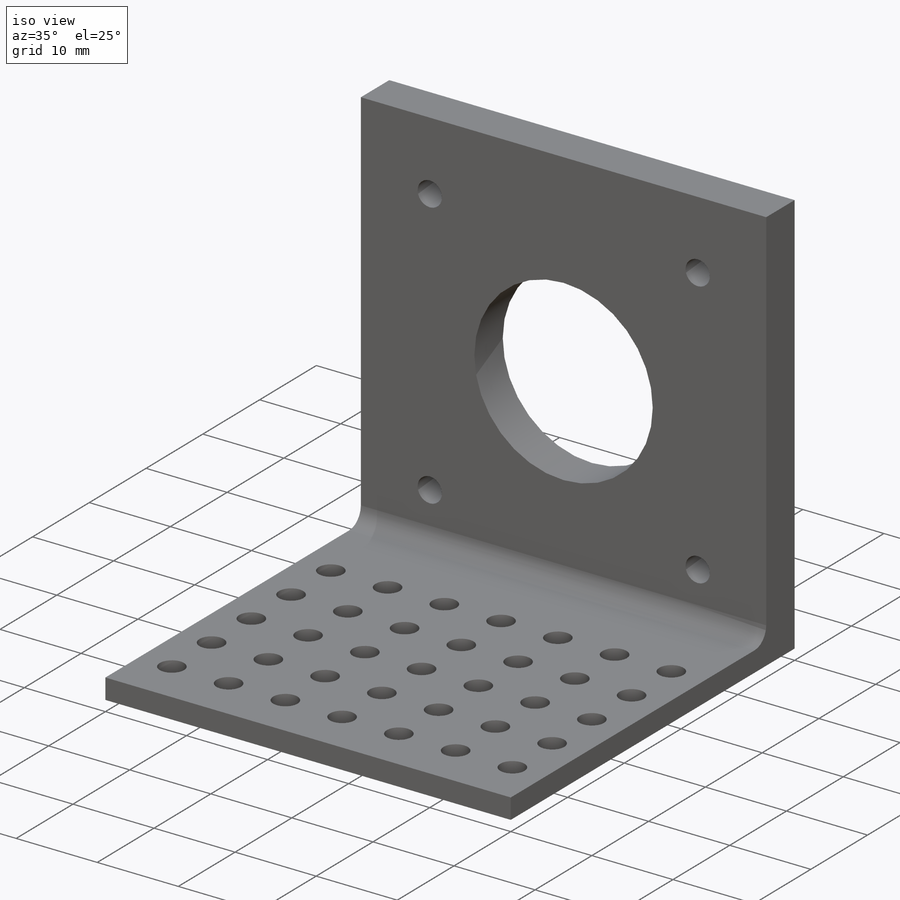
[diagram: iso view]
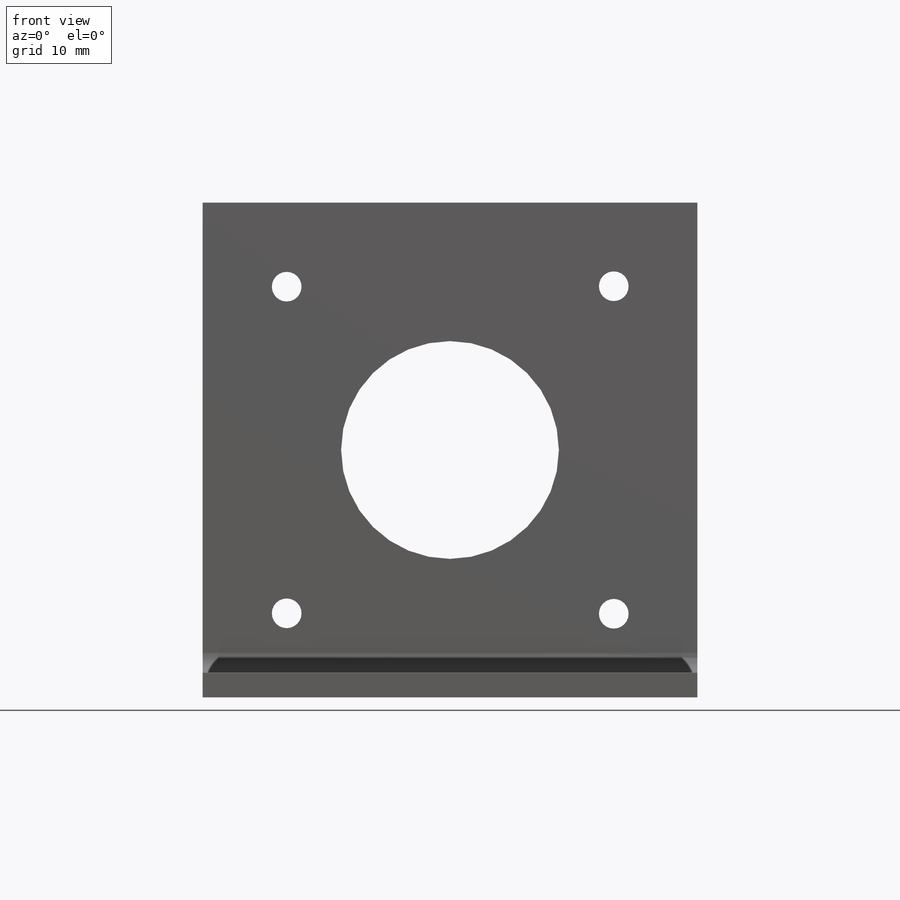
[diagram: front view]
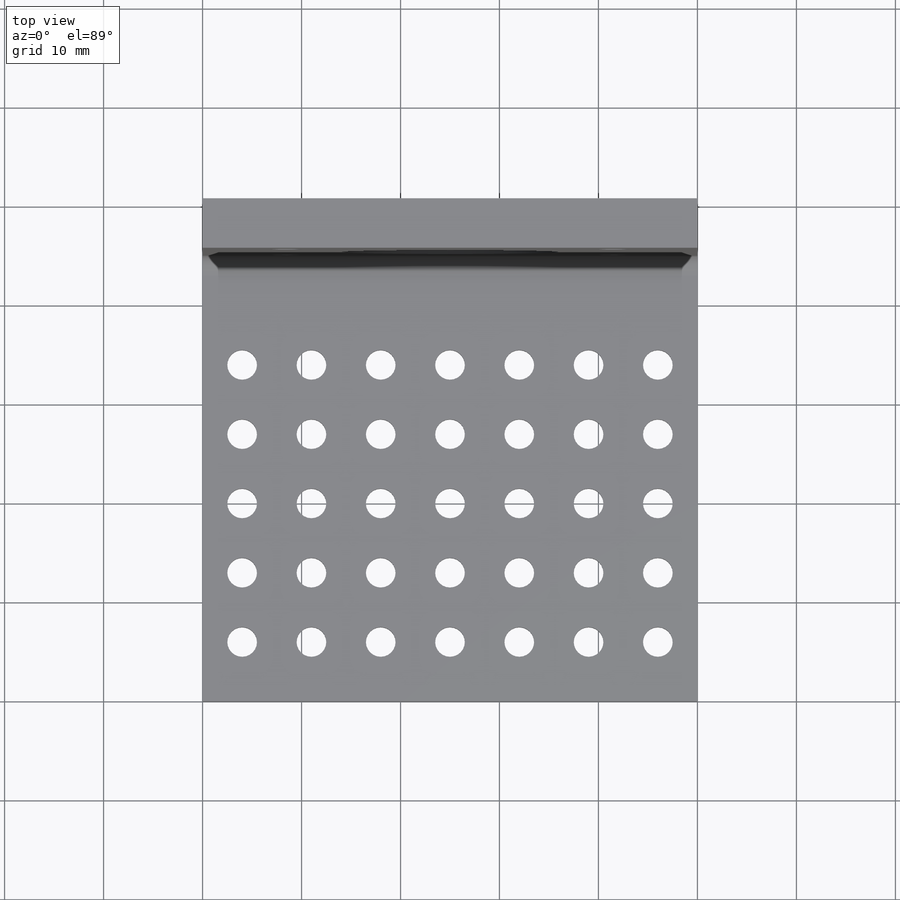
[diagram: top view]
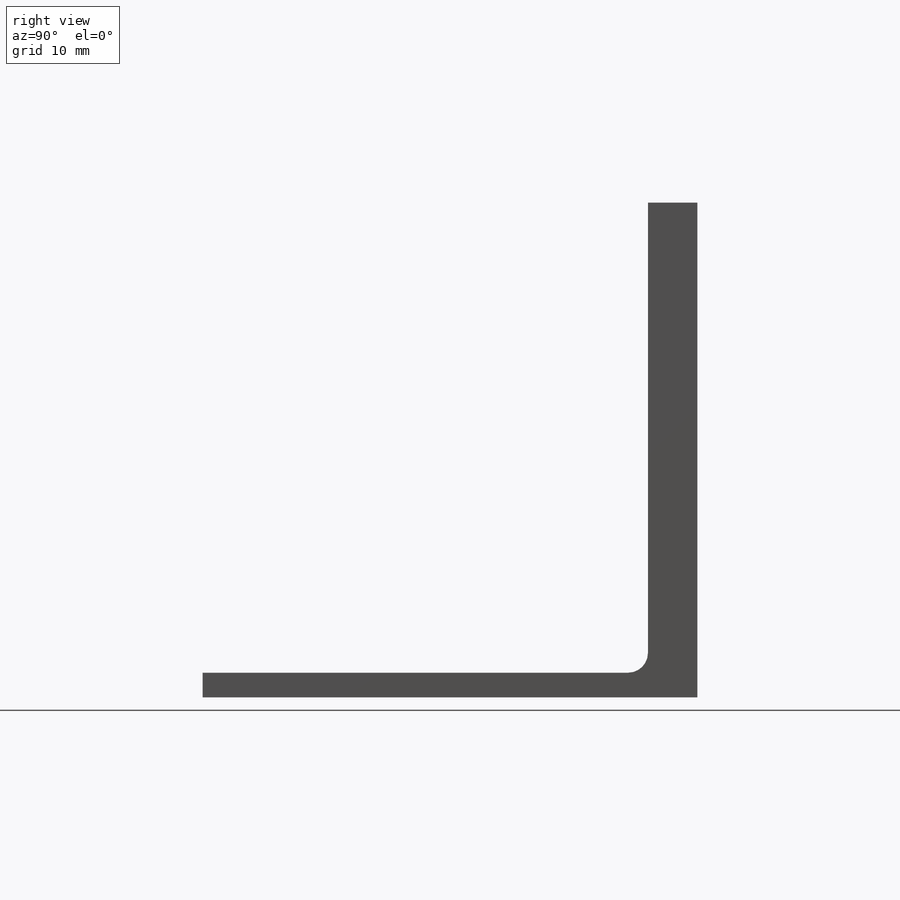
[diagram: right view]
SOLIDWORKS PART (.sldprt)
format: sldprt  version: not decoded by parser v0  size: 316,928 bytes
history: native  units: mm
features: sketch x5, plane x4, extrude x3, cut_extrude x2, material x1, fillet x1 (+10 scaffold rows collapsed)
feature tree (26):
  scaffold x10  (default folders/planes/origin — collapsed)
  material  "Material <não especificado>"
  plane  "Plano frontal"
  plane  "Plano superior"
  plane  "Plano direito"
  sketch  "Esboço1"  dims[c1.D3=22.0mm c1.D5=~3.553919mm c1.D6=3.0mm c1.D7=3.0mm c1.D8=3.0mm c1.D9=3.0mm c1.D1=50.0mm c1.D2=50.0mm c1.D4=33.0mm c2.D5=33.0mm c2.D6=33.0mm c2.D7=33.0mm c2.D8=~18.328935mm c2.D9=~18.328935mm c2.D4=16.5mm c3.D5=16.5mm]
  extrude  "Ressalto-extrusão1"  Depth=10mm
  sketch  "Esboço2"  dims[c1.D1=8.0mm c1.D2=42.0mm c2.D1=6.0mm c2.D2=2.5mm]
  extrude  "Ressalto-extrusão2"  Depth=50mm
  sketch  "Esboço3"  dims[c1.D1=3.0mm c1.D4=10.0mm c1.D5=5.0mm c1.D8=7.0mm c1.D9=7.0mm c1.D12=7.0mm c2.D5=7.0mm c2.D15=7.0mm c2.D6=4.0 c2.D7=3.0 c2.D10=4.0 c2.D11=3.0 c2.D2=4.0 c2.D3=3.0 c2.D13=4.0 c2.D14=3.0]
  cut_extrude  "Corte-extrusão1"  Depth=101mm
  extrude  "Ressalto-extrusão3"  [1 undecoded]
  sketch  "Esboço1<2>"  dims[D1=4.0mm]
  plane  "Plano1"
  sketch  "Esboço5"
  cut_extrude  "Corte-extrusão2"  [1 undecoded]
  fillet  "Filete2"  Radius=2mm
decode coverage: 8 of 11 modeling features carry decoded parameters
note: ~ marks probable driven/reference dimensions
note: 2 parameter values undecoded
note: suppression state not decoded; provenance and decode notes live in map.json
